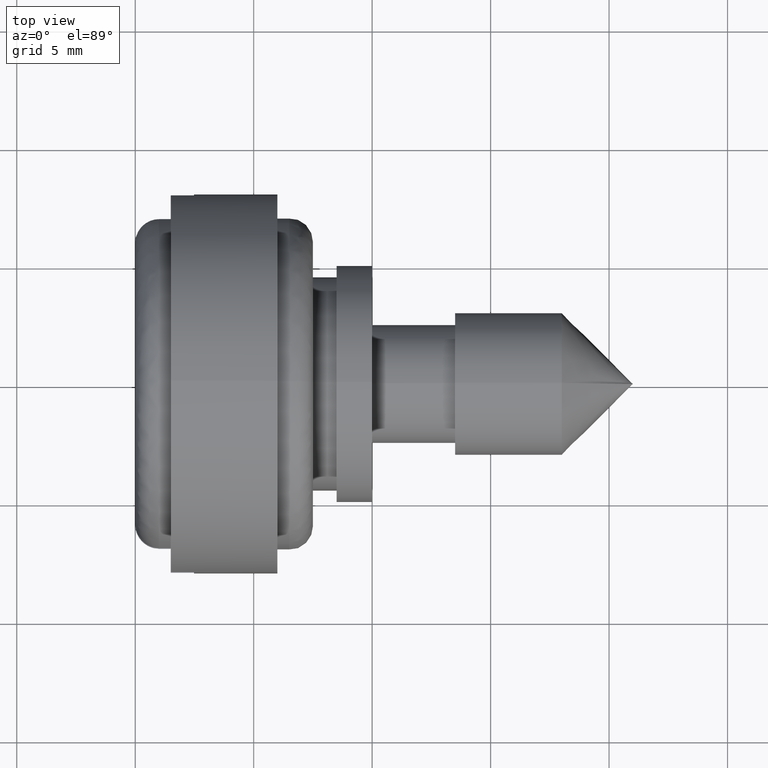
[diagram: clean part render]
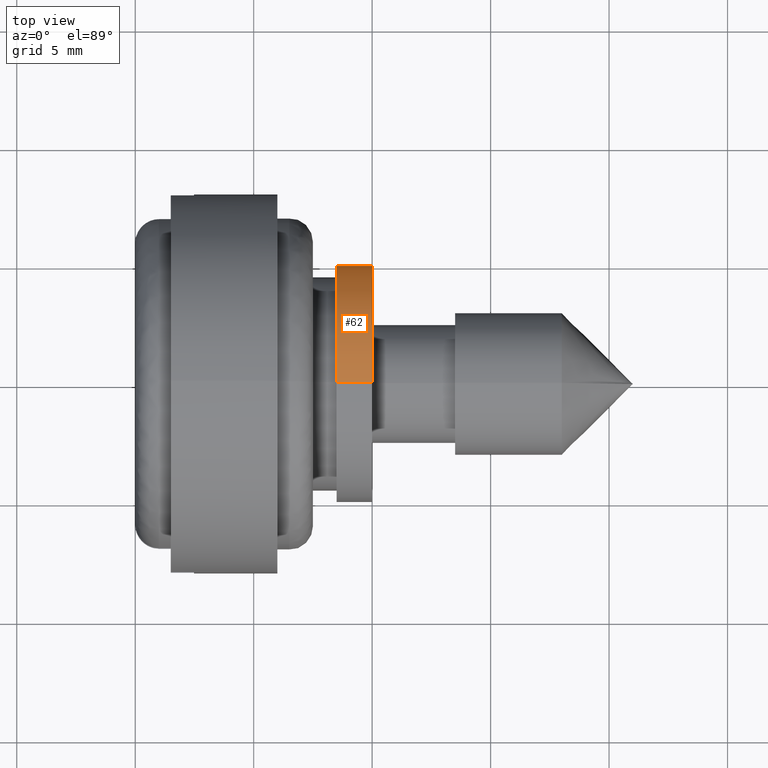
[diagram: same view with one face highlighted and labeled with its STEP entity id]
A machine part, top view. The second image highlights one B-rep face of the part: STEP entity #62.
In plain terms, the highlighted cylindrical surface (partial cylindrical patch) has radius 5 mm, axis along (1, -0, -0).
Its self-contained STEP definition (entity closure, byte-faithful):
#62=ADVANCED_FACE('',(#298),#297,.T.);
#297=CYLINDRICAL_SURFACE('',#569,5.00000000000E+00);
#298=FACE_OUTER_BOUND('',#570,.T.);
#566=CARTESIAN_POINT('',(0.00000000000E+00,0.00000000000E+00,0.00000000000E+00));
#567=DIRECTION('',(1.00000000000E+00,-0.00000000000E+00,-0.00000000000E+00));
#568=DIRECTION('',(-0.00000000000E+00,-0.00000000000E+00,-1.00000000000E+00));
#569=AXIS2_PLACEMENT_3D('',#566,#567,#568);
#570=EDGE_LOOP('',(#754,#755,#756,#757));
#754=ORIENTED_EDGE('',*,*,#841,.T.);
#755=ORIENTED_EDGE('',*,*,#862,.F.);
#756=ORIENTED_EDGE('',*,*,#844,.F.);
#757=ORIENTED_EDGE('',*,*,#863,.T.);
#841=EDGE_CURVE('',#1132,#1131,#1139,.T.);
#844=EDGE_CURVE('',#1159,#1160,#1161,.T.);
#862=EDGE_CURVE('',#1160,#1131,#1279,.T.);
#863=EDGE_CURVE('',#1159,#1132,#1285,.T.);
#1131=VERTEX_POINT('',#1540);
#1132=VERTEX_POINT('',#1541);
#1139=CIRCLE('',#1549,5.00000000000E+00);
#1159=VERTEX_POINT('',#1560);
#1160=VERTEX_POINT('',#1561);
#1161=CIRCLE('',#1565,5.00000000000E+00);
#1279=(BOUNDED_CURVE() B_SPLINE_CURVE(1,(#1632,#1633),.UNSPECIFIED.,.F.,.F.) B_SPLINE_CURVE_WITH_KNOTS((2,2),(8.33333134656E-02,9.16666653270E-01),.UNSPECIFIED.) CURVE() GEOMETRIC_REPRESENTATION_ITEM() RATIONAL_B_SPLINE_CURVE((1.00000000000E+00,1.00000000000E+00)) REPRESENTATION_ITEM('') );
#1285=(BOUNDED_CURVE() B_SPLINE_CURVE(1,(#1634,#1635),.UNSPECIFIED.,.F.,.F.) B_SPLINE_CURVE_WITH_KNOTS((2,2),(8.33333333333E-02,9.16666666667E-01),.UNSPECIFIED.) CURVE() GEOMETRIC_REPRESENTATION_ITEM() RATIONAL_B_SPLINE_CURVE((7.50000000000E-01,7.50000000000E-01)) REPRESENTATION_ITEM('') );
#1540=CARTESIAN_POINT('',(1.00000000000E+01,2.96059473233E-16,-5.00000000000E+00));
#1541=CARTESIAN_POINT('',(1.00000000000E+01,0.00000000000E+00,5.00000000000E+00));
#1546=CARTESIAN_POINT('',(1.00000000000E+01,0.00000000000E+00,0.00000000000E+00));
#1547=DIRECTION('',(-1.00000000000E+00,0.00000000000E+00,0.00000000000E+00));
#1548=DIRECTION('',(0.00000000000E+00,-1.22460635382E-16,1.00000000000E+00));
#1549=AXIS2_PLACEMENT_3D('',#1546,#1547,#1548);
#1560=CARTESIAN_POINT('',(8.50000000000E+00,0.00000000000E+00,5.00000000000E+00));
#1561=CARTESIAN_POINT('',(8.50000000000E+00,2.96059473233E-16,-5.00000000000E+00));
#1562=CARTESIAN_POINT('',(8.50000000000E+00,0.00000000000E+00,0.00000000000E+00));
#1563=DIRECTION('',(-1.00000000000E+00,0.00000000000E+00,0.00000000000E+00));
#1564=DIRECTION('',(0.00000000000E+00,-1.22460635382E-16,1.00000000000E+00));
#1565=AXIS2_PLACEMENT_3D('',#1562,#1563,#1564);
#1632=CARTESIAN_POINT('',(8.49999996424E+00,0.00000000000E+00,-5.00000000000E+00));
#1633=CARTESIAN_POINT('',(9.99999997589E+00,0.00000000000E+00,-5.00000000000E+00));
#1634=CARTESIAN_POINT('',(8.50000000000E+00,-2.96059473233E-16,5.00000000000E+00));
#1635=CARTESIAN_POINT('',(1.00000000000E+01,-2.96059473233E-16,5.00000000000E+00));